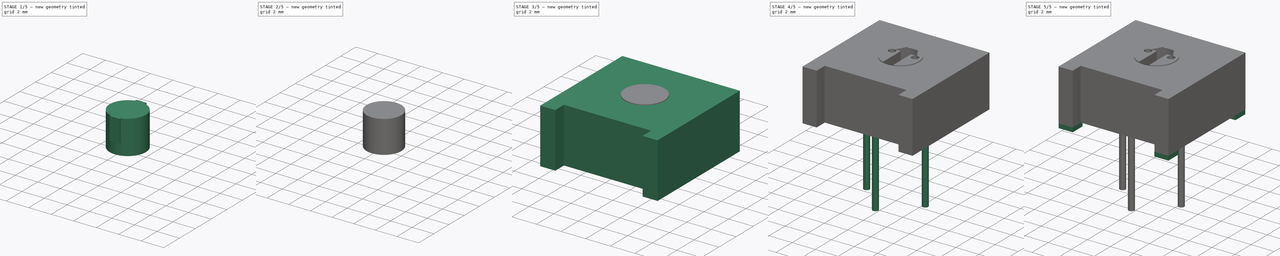
[diagram: build sequence overview — one tinted view per stage of 5, left to right]
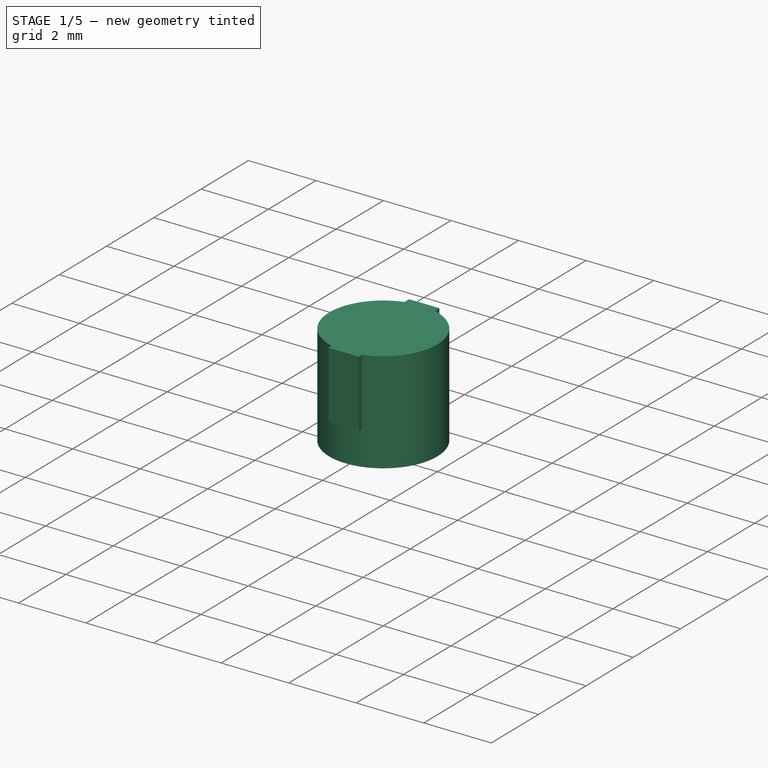
[diagram: stage 1 of 5 — iso view after this stage's code; geometry added in this stage tinted green]
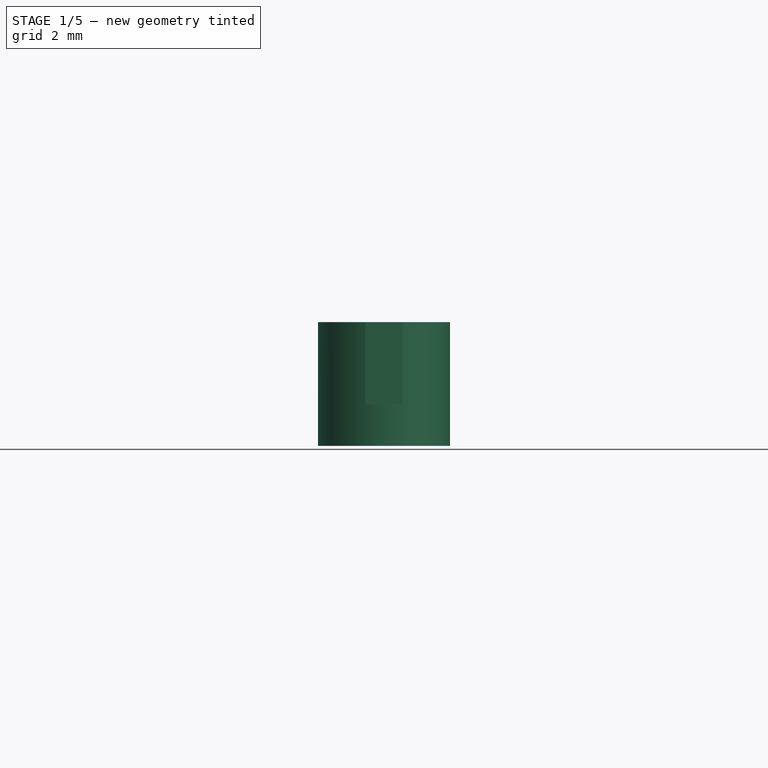
[diagram: stage 1 of 5 — front view after this stage's code; geometry added in this stage tinted green]
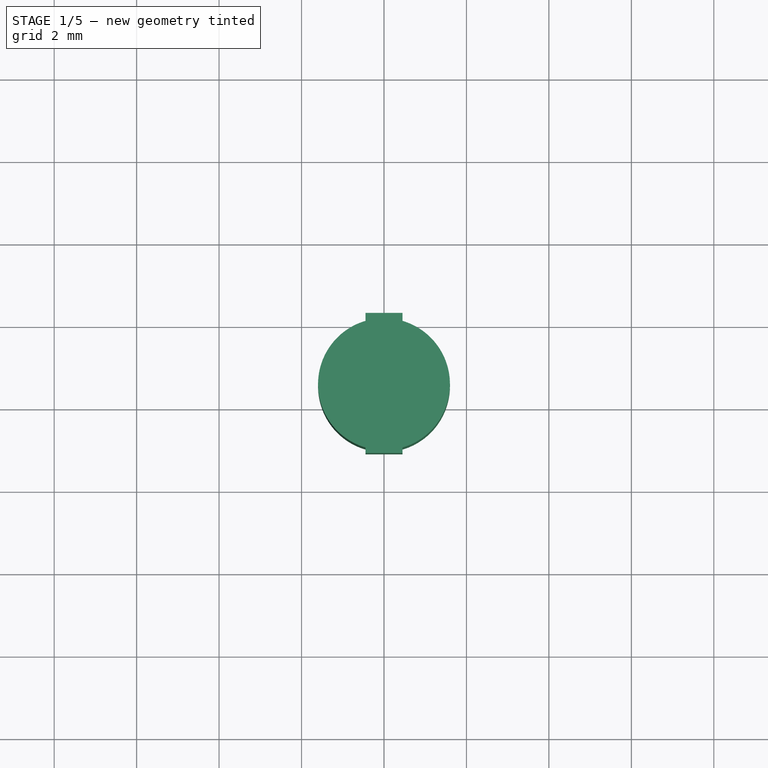
[diagram: stage 1 of 5 — top view after this stage's code; geometry added in this stage tinted green]
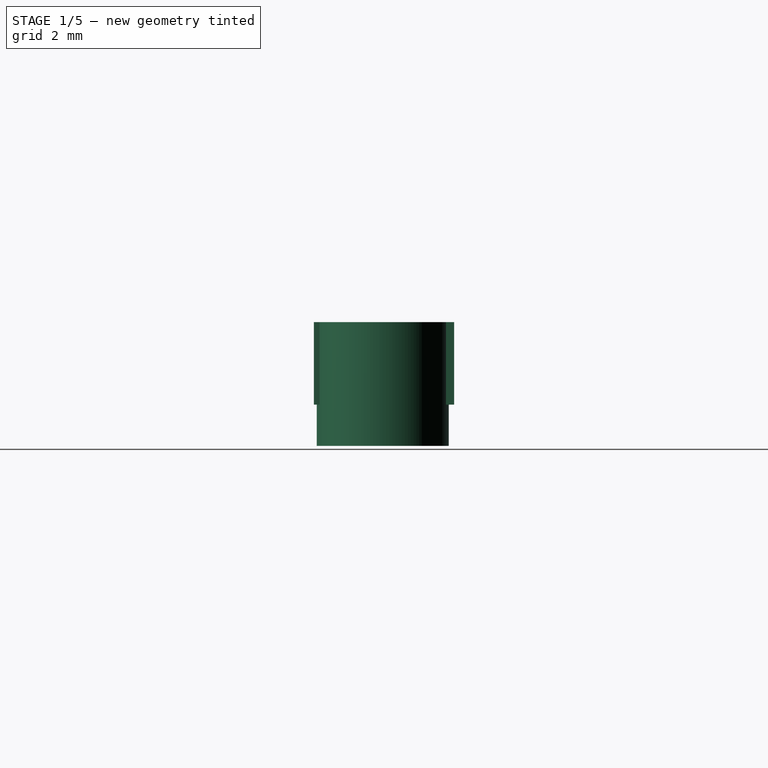
[diagram: stage 1 of 5 — right view after this stage's code; geometry added in this stage tinted green]
FCSTD DOCUMENT  (FreeCAD 0.20R29177 (Git))
Label: bourns_3386P-2
License: Creative Commons Attribution-ShareAlike
LicenseURL: http://creativecommons.org/licenses/by-sa/4.0/
objects: Part::Box×7, Part::Cylinder×7, Part::Cut×3, Sketcher::SketchObject×1, PartDesign::Pad×1, PartDesign::Body×1, Part::MultiFuse×1
note: 22 computed .brp shape members not serialized (recipe doc carries the construction recipe); baked Part::Feature solids carry a one-line shape summary decoded from their .brp

FEATURE [PartDesign::Body] Body
  Group = -> [Sketch,Pad]
  Origin = -> Origin
  Placement = pos=(0,0,3.5) rot=(0,0,1;0rad)
  Tip = -> Pad
FEATURE [Part::Box] Box006  label="Cube006"
  AttacherType = Attacher::AttachEngine3D
  Height = 2
  Length = 0.9
  Placement = pos=(-0.45,-1.1,2.9) rot=(0,0,1;0rad)
  Width = 3.4
FEATURE [Part::Cylinder] Cylinder004
  Angle = 360
  AttacherType = Attacher::AttachEngine3D
  FirstAngle = 0
  Height = 0.5
  Placement = pos=(-1,0.95,4.4) rot=(0,0,1;0rad)
  Radius = 0.3
  SecondAngle = 0
FEATURE [Part::Cylinder] Cylinder005
  Angle = 360
  AttacherType = Attacher::AttachEngine3D
  FirstAngle = 0
  Height = 0.5
  Placement = pos=(1,0.95,4.4) rot=(0,0,1;0rad)
  Radius = 0.3
  SecondAngle = 0
FEATURE [Part::Cylinder] Cylinder006
  Angle = 360
  AttacherType = Attacher::AttachEngine3D
  FirstAngle = 0
  Height = 3
  Placement = pos=(0,0.57,1.9) rot=(0,0,1;0rad)
  Radius = 1.6
  SecondAngle = 0
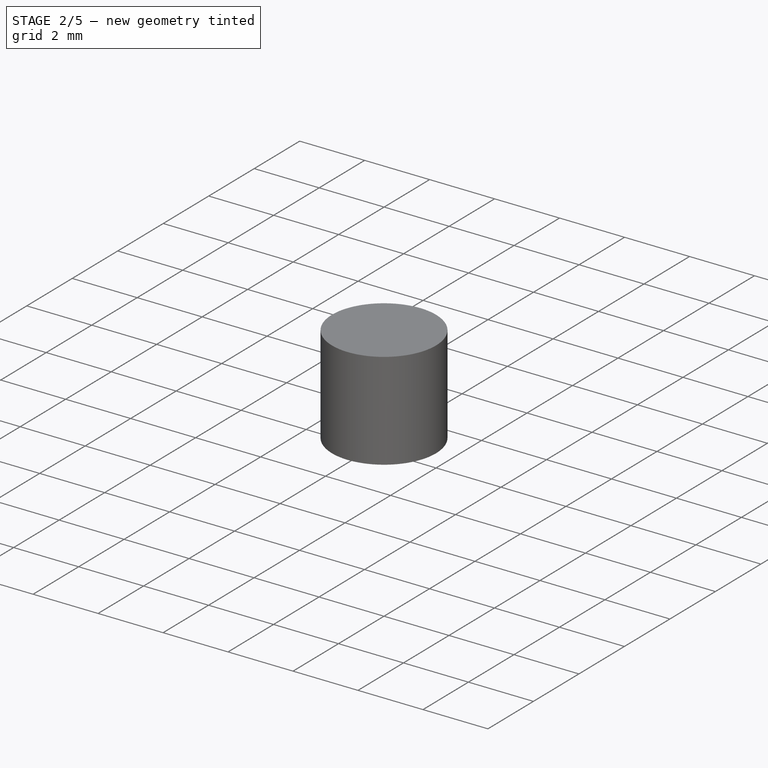
[diagram: stage 2 of 5 — iso view after this stage's code; geometry added in this stage tinted green]
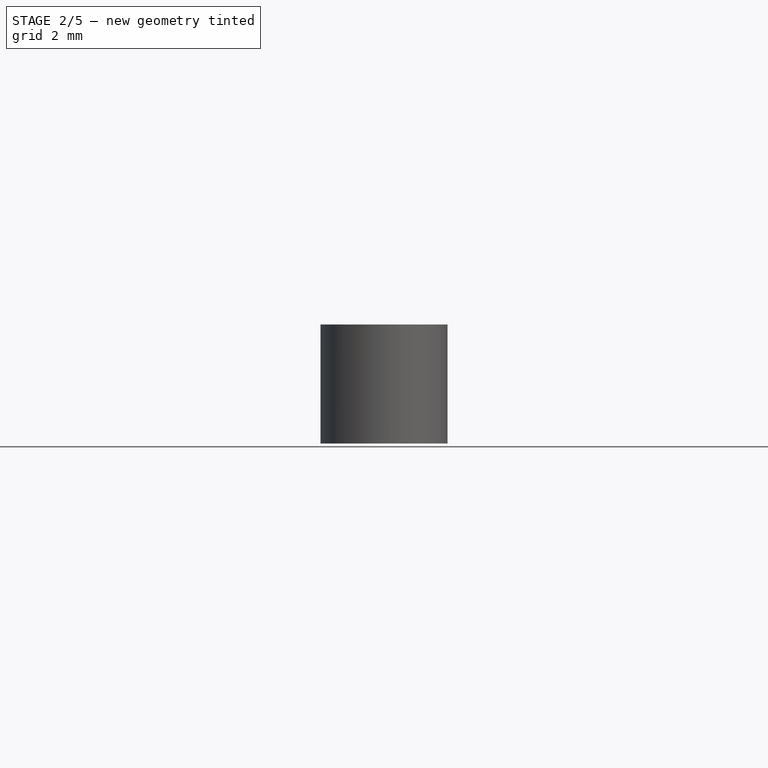
[diagram: stage 2 of 5 — front view after this stage's code; geometry added in this stage tinted green]
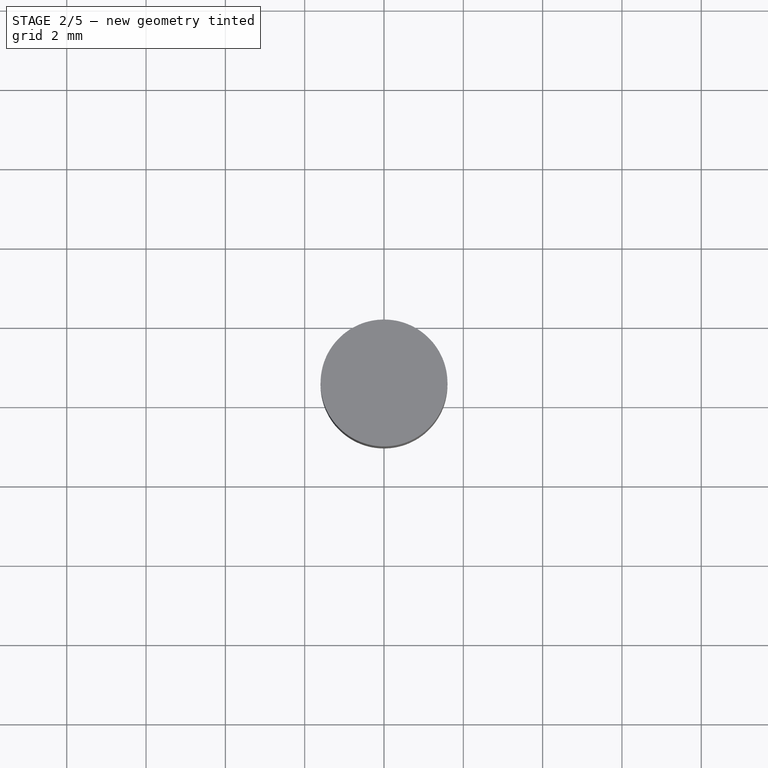
[diagram: stage 2 of 5 — top view after this stage's code; geometry added in this stage tinted green]
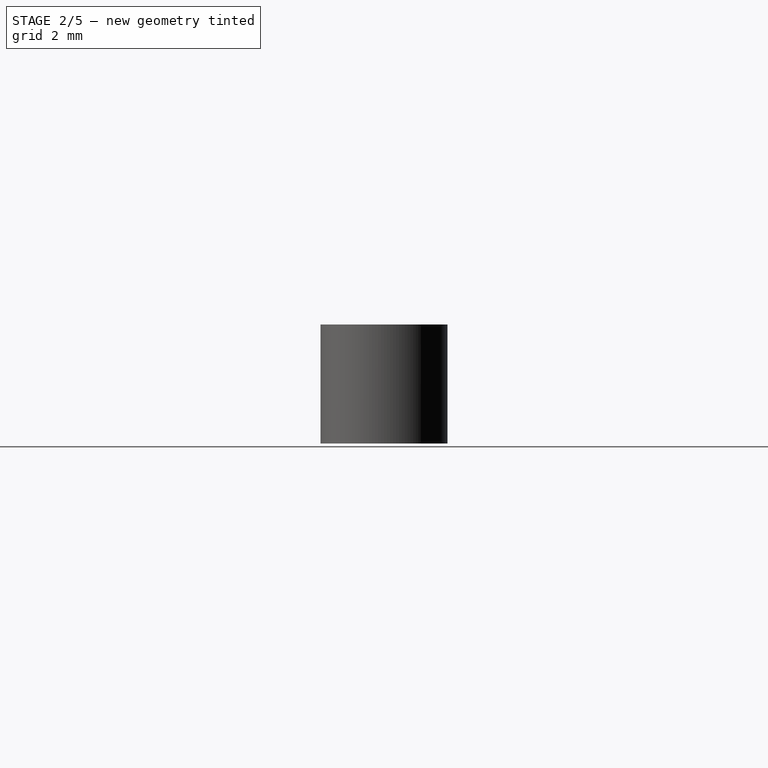
[diagram: stage 2 of 5 — right view after this stage's code; geometry added in this stage tinted green]
FEATURE [Part::Cylinder] Cylinder003
  Angle = 360
  AttacherType = Attacher::AttachEngine3D
  FirstAngle = 0
  Height = 3
  Placement = pos=(0,0.57,1.9) rot=(0,0,1;0rad)
  Radius = 1.6
  SecondAngle = 0
FEATURE [Sketcher::SketchObject] Sketch
  FullyConstrained = true
  MapMode = 5
  Support = -> [XY_Plane]
  sketch-geometry (7):
    g0: LineSegment StartX=-0.45 StartY=-1.1 StartZ=0 EndX=0.45 EndY=-1.1 EndZ=0
    g1: LineSegment StartX=0 StartY=2.88 StartZ=0 EndX=-0.95 EndY=1.25 EndZ=0
    g2: LineSegment StartX=0 StartY=2.88 StartZ=0 EndX=0.95 EndY=1.21888 EndZ=0
    g3: LineSegment StartX=-0.45 StartY=-1.1 StartZ=0 EndX=-0.45 EndY=1.25 EndZ=0
    g4: LineSegment StartX=0.45 StartY=-1.1 StartZ=0 EndX=0.45 EndY=1.21888 EndZ=0
    g5: LineSegment StartX=0.45 StartY=1.21888 StartZ=0 EndX=0.95 EndY=1.21888 EndZ=0
    g6: LineSegment StartX=-0.45 StartY=1.25 StartZ=0 EndX=-0.95 EndY=1.25 EndZ=0
  constraints (21):
    c: Horizontal(g0)
    c: Distance(g0) = 0.9
    c: DistanceX(g0) = -0.45
    c: Coincident(g1,g2)
    c: Angle(g1,g2) = 1.0472
    c: DistanceX(g1) = 0
    c: DistanceY(g1) = 2.88
    c: Vertical(g3)
    c: Vertical(g4)
    c: Coincident(g0,g3)
    c: Coincident(g0,g4)
    c: Horizontal(g5)
    c: Horizontal(g6)
    c: Coincident(g4,g5)
    c: Coincident(g3,g6)
    c: Distance(g6) = 0.5
    c: Distance(g5) = 0.5
    c: Coincident(g1,g6)
    c: Coincident(g2,g5)
    c: DistanceY(g0) = -1.1
    c: DistanceY(g3) = 1.25
FEATURE [PartDesign::Pad] Pad
  Direction = (0,0,1)
  Length = 1.4
  Length2 = 100
  Profile = -> Sketch
  Type = 0
FEATURE [Part::MultiFuse] Fusion
  Shapes = -> [Body,Box006,Cylinder004,Cylinder005]
FEATURE [Part::Cut] Cut003
  Base = -> Cylinder006
  Tool = -> Fusion
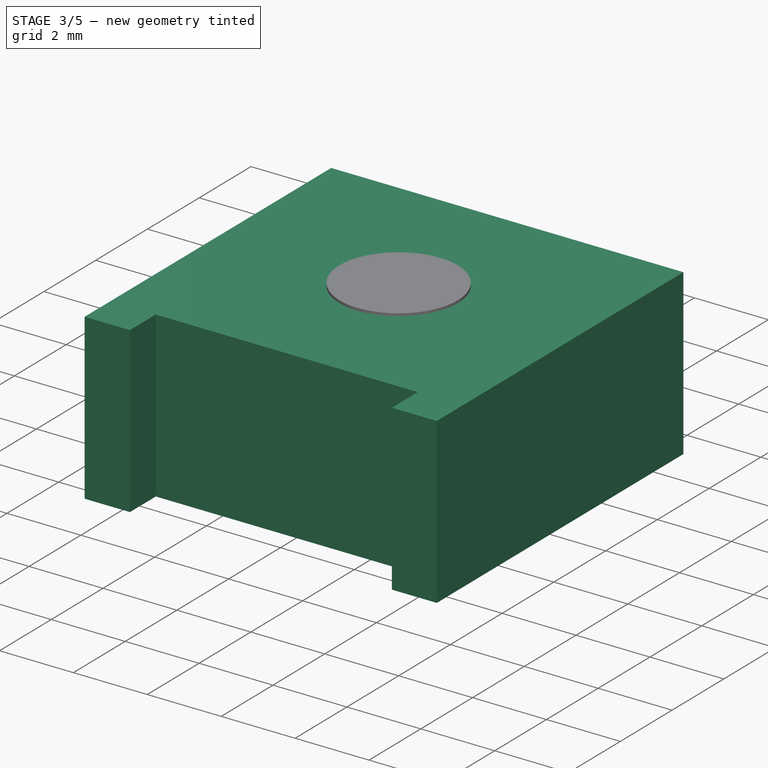
[diagram: stage 3 of 5 — iso view after this stage's code; geometry added in this stage tinted green]
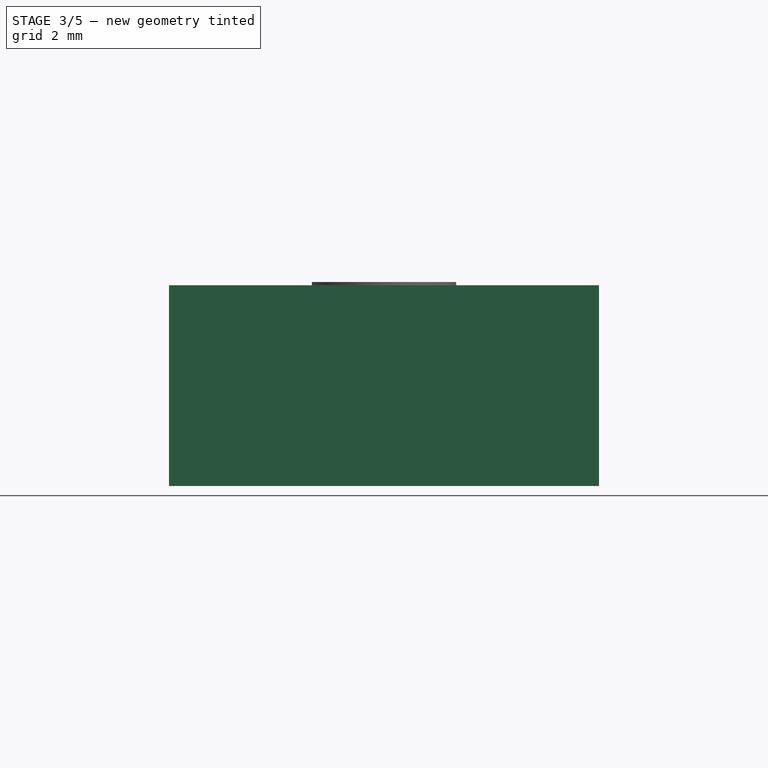
[diagram: stage 3 of 5 — front view after this stage's code; geometry added in this stage tinted green]
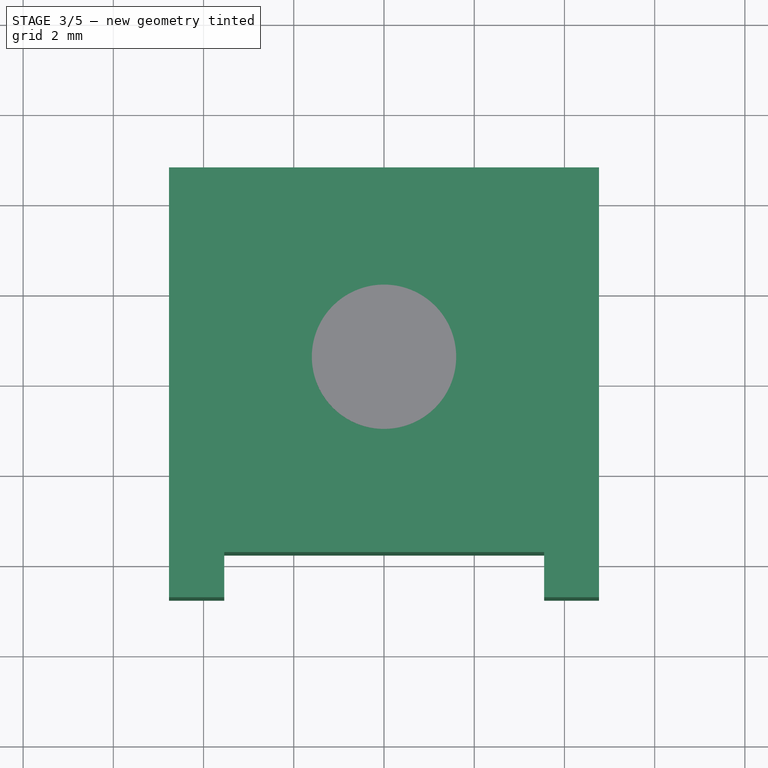
[diagram: stage 3 of 5 — top view after this stage's code; geometry added in this stage tinted green]
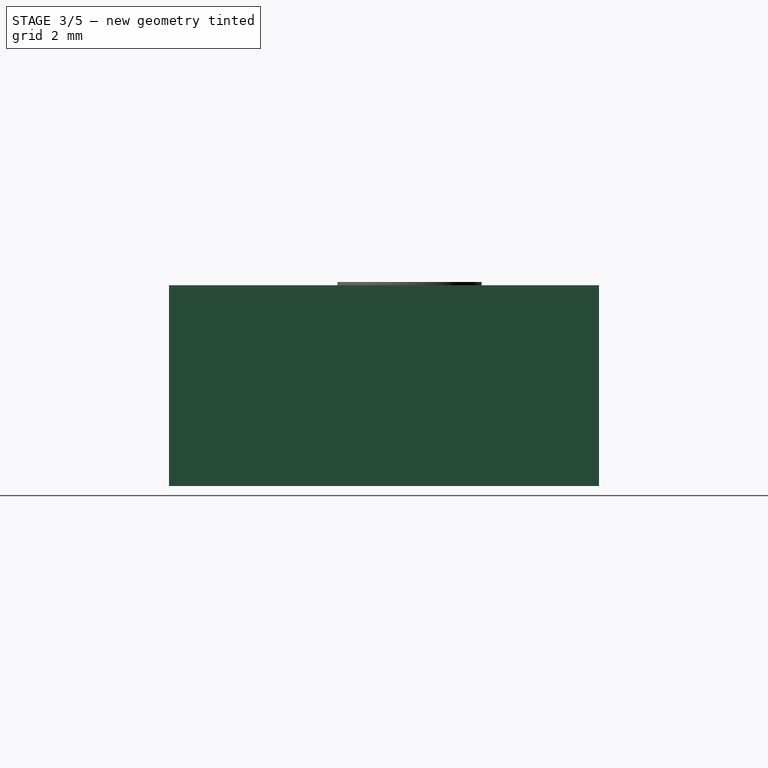
[diagram: stage 3 of 5 — right view after this stage's code; geometry added in this stage tinted green]
FEATURE [Part::Box] Box  label="Cube"
  AttacherType = Attacher::AttachEngine3D
  Height = 4.45
  Length = 9.53
  Placement = pos=(-4.765,-4.76,0.38) rot=(0,0,1;0rad)
  Width = 9.53
FEATURE [Part::Box] Box005  label="Cube005"
  AttacherType = Attacher::AttachEngine3D
  Height = 4.45
  Length = 7.09
  Placement = pos=(-3.54,-4.76,0.38) rot=(0,0,1;0rad)
  Width = 1
FEATURE [Part::Cut] Cut
  Base = -> Box
  Tool = -> Box005
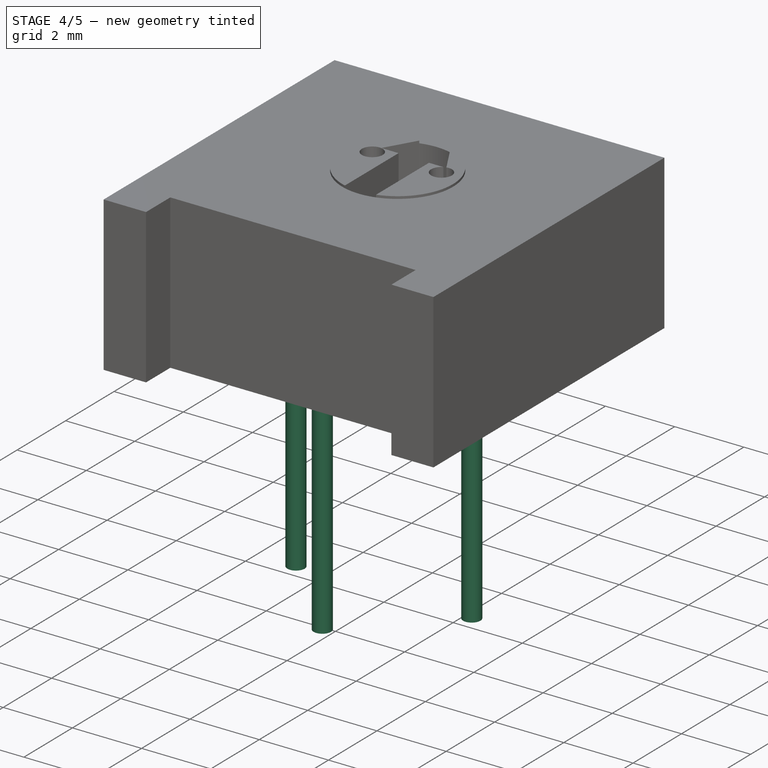
[diagram: stage 4 of 5 — iso view after this stage's code; geometry added in this stage tinted green]
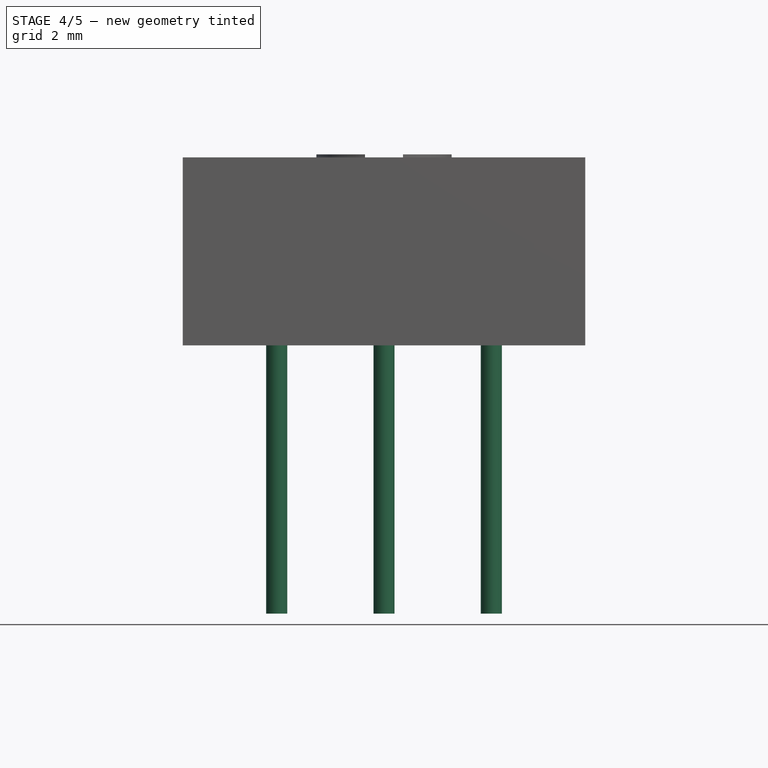
[diagram: stage 4 of 5 — front view after this stage's code; geometry added in this stage tinted green]
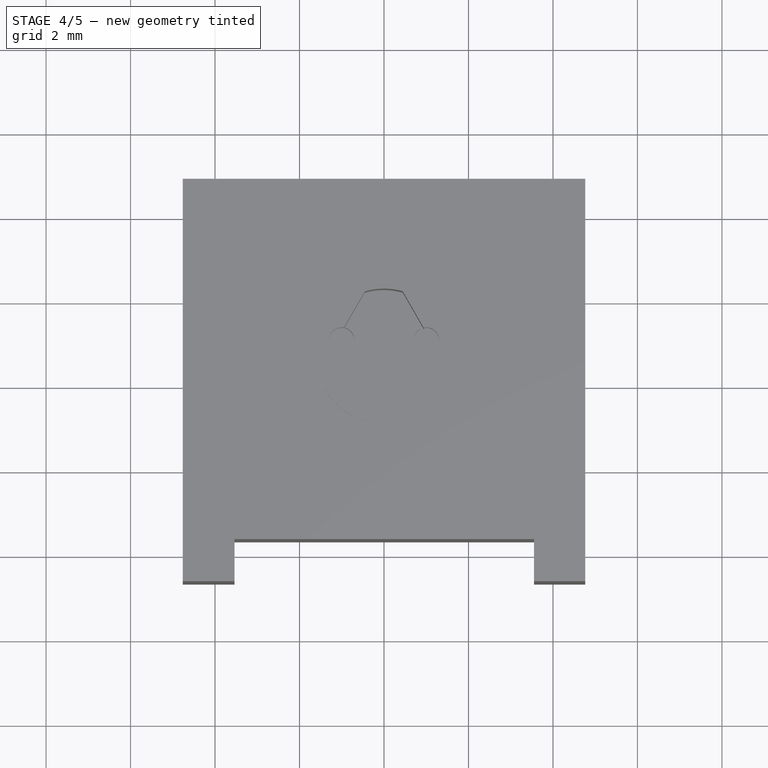
[diagram: stage 4 of 5 — top view after this stage's code; geometry added in this stage tinted green]
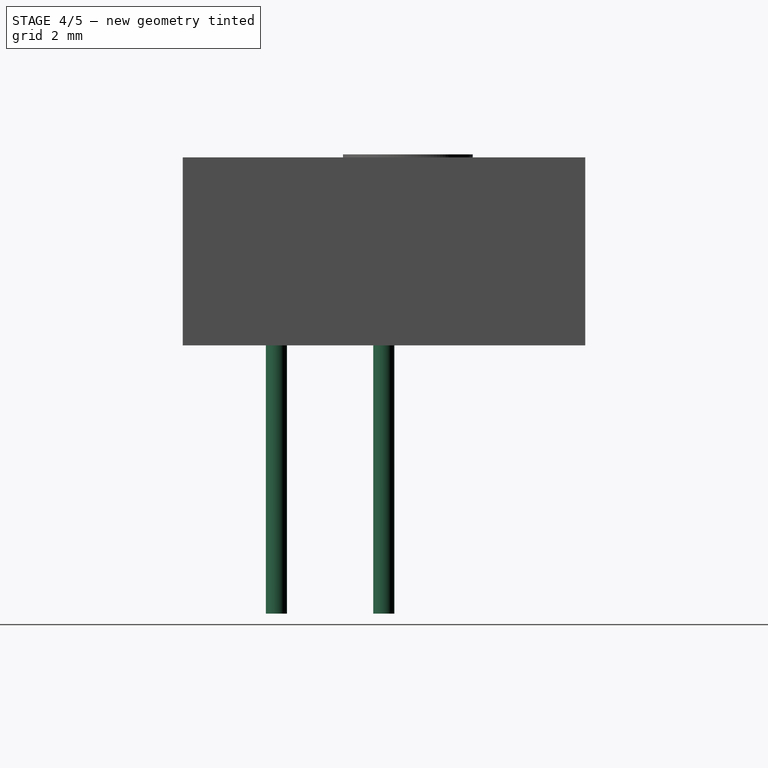
[diagram: stage 4 of 5 — right view after this stage's code; geometry added in this stage tinted green]
FEATURE [Part::Cylinder] Cylinder
  Angle = 360
  AttacherType = Attacher::AttachEngine3D
  FirstAngle = 0
  Height = 6.35
  Placement = pos=(2.54,0,-5.97) rot=(0,0,1;0rad)
  Radius = 0.25
  SecondAngle = 0
FEATURE [Part::Cylinder] Cylinder001
  Angle = 360
  AttacherType = Attacher::AttachEngine3D
  FirstAngle = 0
  Height = 6.35
  Placement = pos=(-2.54,0,-5.97) rot=(0,0,1;0rad)
  Radius = 0.25
  SecondAngle = 0
FEATURE [Part::Cylinder] Cylinder002
  Angle = 360
  AttacherType = Attacher::AttachEngine3D
  FirstAngle = 0
  Height = 6.35
  Placement = pos=(0,-2.54,-5.97) rot=(0,0,1;0rad)
  Radius = 0.25
  SecondAngle = 0
FEATURE [Part::Cut] Cut002
  Base = -> Cut
  Tool = -> Cylinder003
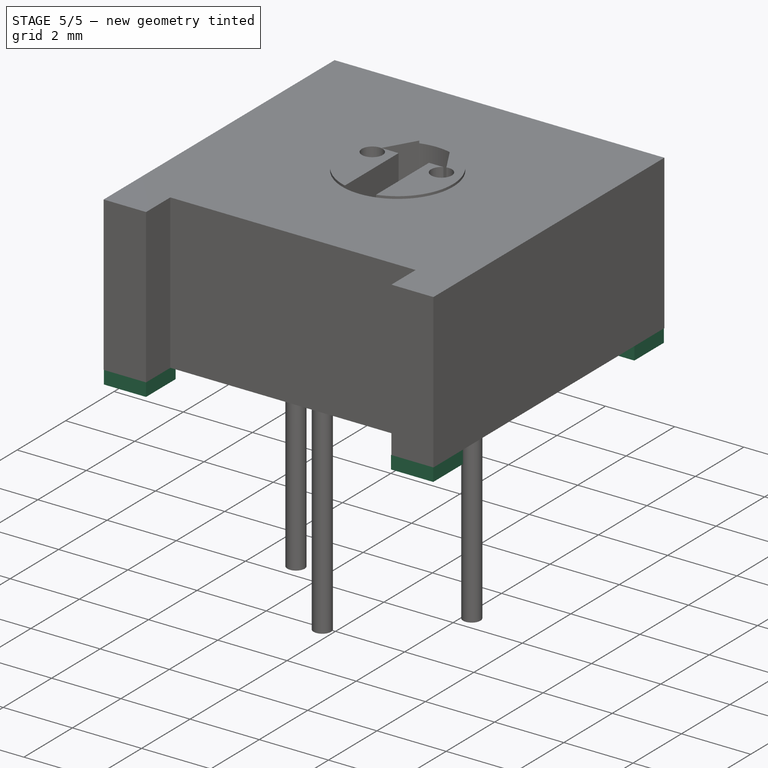
[diagram: stage 5 of 5 — iso view after this stage's code; geometry added in this stage tinted green]
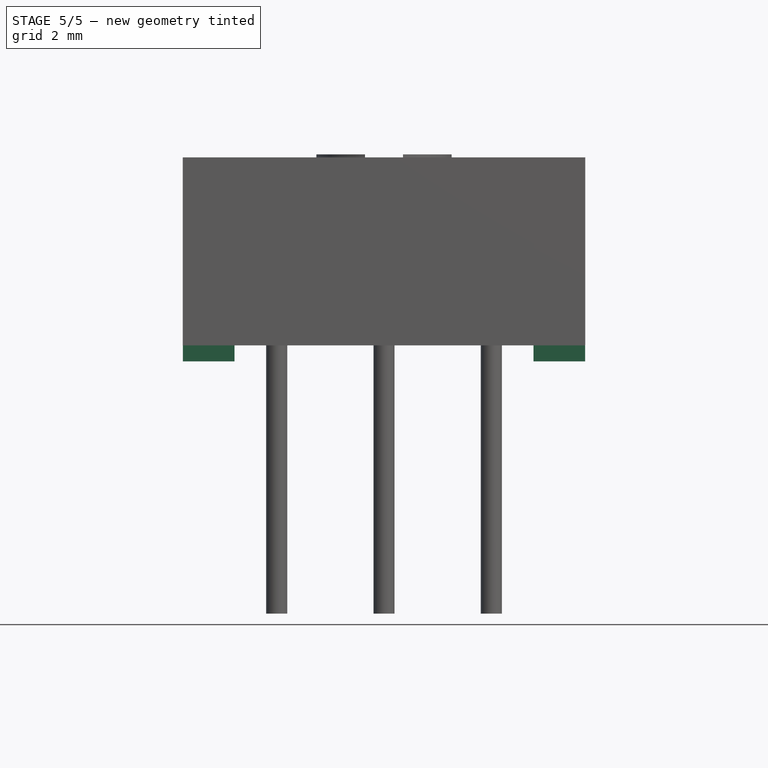
[diagram: stage 5 of 5 — front view after this stage's code; geometry added in this stage tinted green]
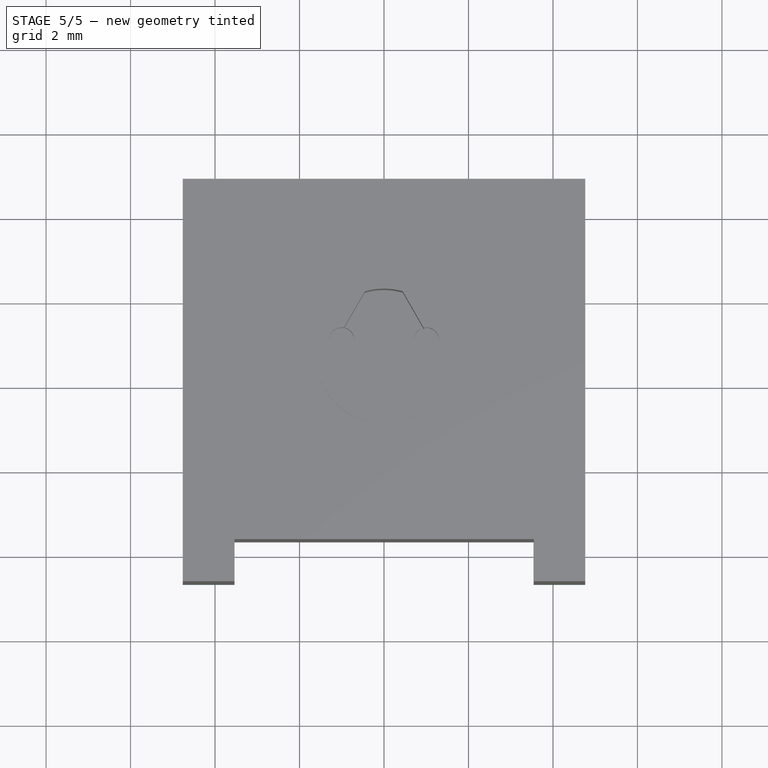
[diagram: stage 5 of 5 — top view after this stage's code; geometry added in this stage tinted green]
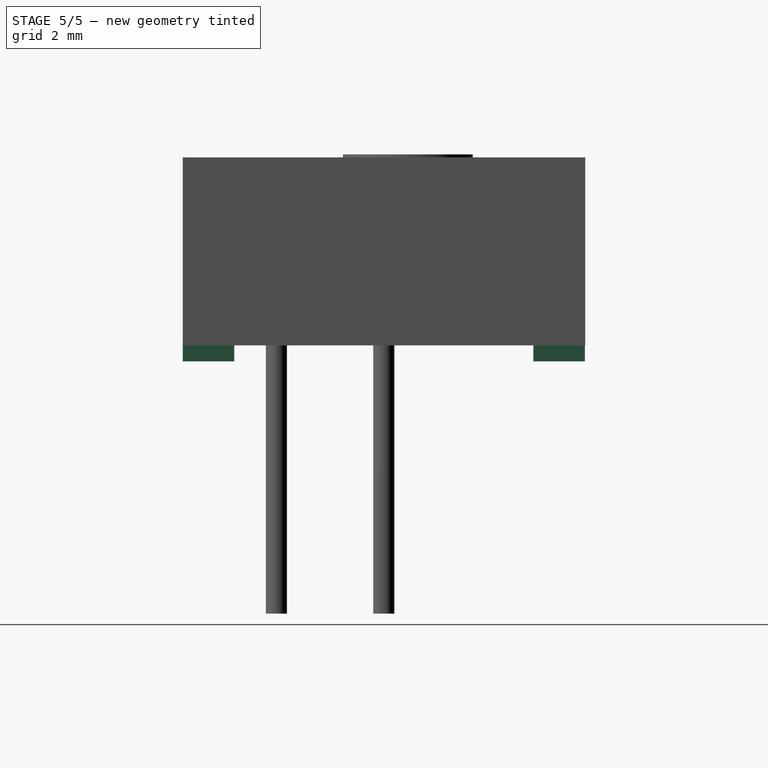
[diagram: stage 5 of 5 — right view after this stage's code; geometry added in this stage tinted green]
FEATURE [Part::Box] Box001  label="Cube001"
  AttacherType = Attacher::AttachEngine3D
  Height = 0.38
  Length = 1.22
  Placement = pos=(-4.76,-4.76,0) rot=(0,0,1;0rad)
  Width = 1.22
FEATURE [Part::Box] Box002  label="Cube002"
  AttacherType = Attacher::AttachEngine3D
  Height = 0.38
  Length = 1.22
  Placement = pos=(-4.76,3.54,0) rot=(0,0,1;0rad)
  Width = 1.22
FEATURE [Part::Box] Box003  label="Cube003"
  AttacherType = Attacher::AttachEngine3D
  Height = 0.38
  Length = 1.22
  Placement = pos=(3.54,-4.76,0) rot=(0,0,1;0rad)
  Width = 1.22
FEATURE [Part::Box] Box004  label="Cube004"
  AttacherType = Attacher::AttachEngine3D
  Height = 0.38
  Length = 1.22
  Placement = pos=(3.54,3.54,0) rot=(0,0,1;0rad)
  Width = 1.22
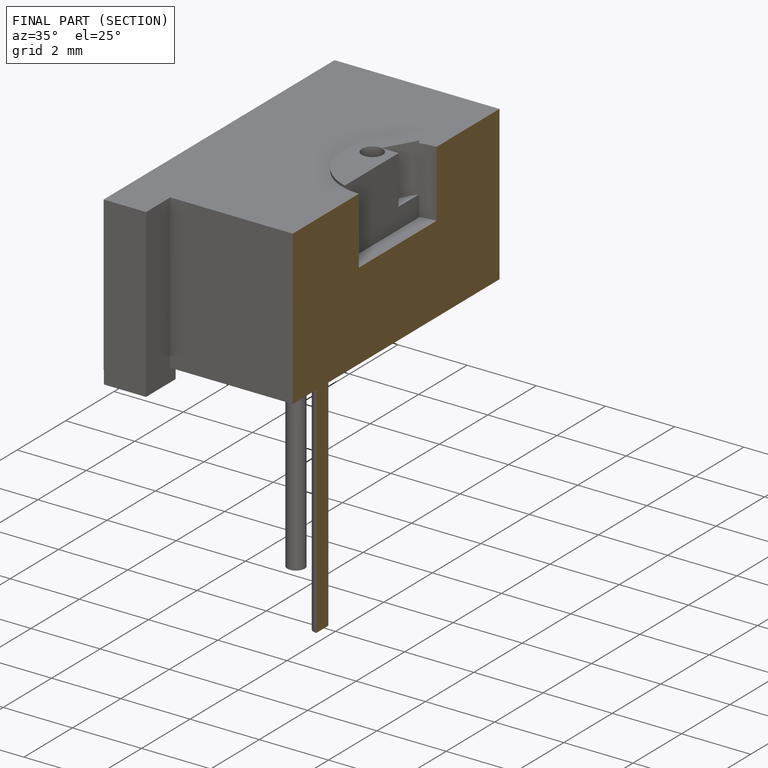
[diagram: finished part — half-section view (interior)]
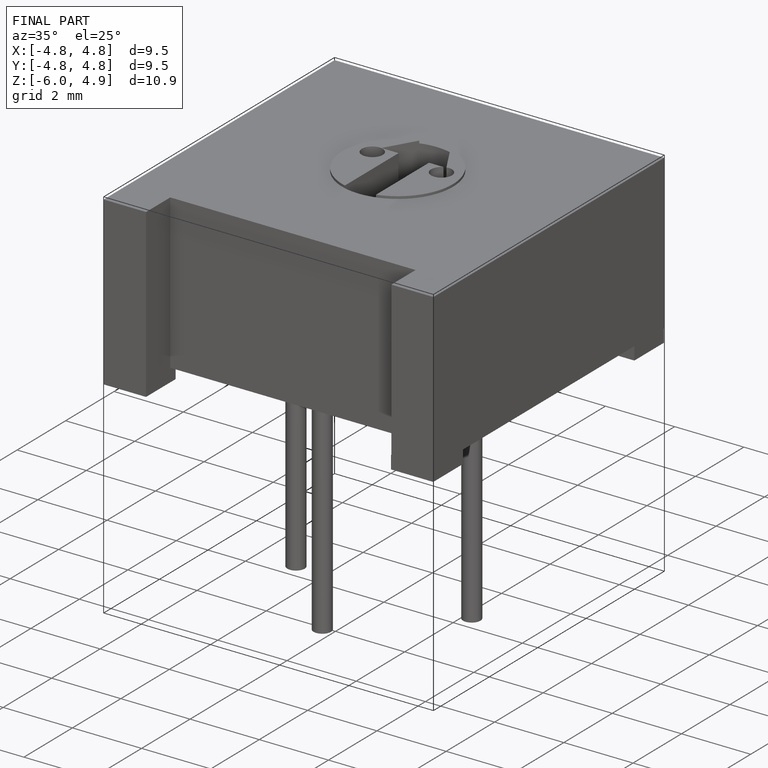
[diagram: finished part — iso view with bounding-box wireframe]
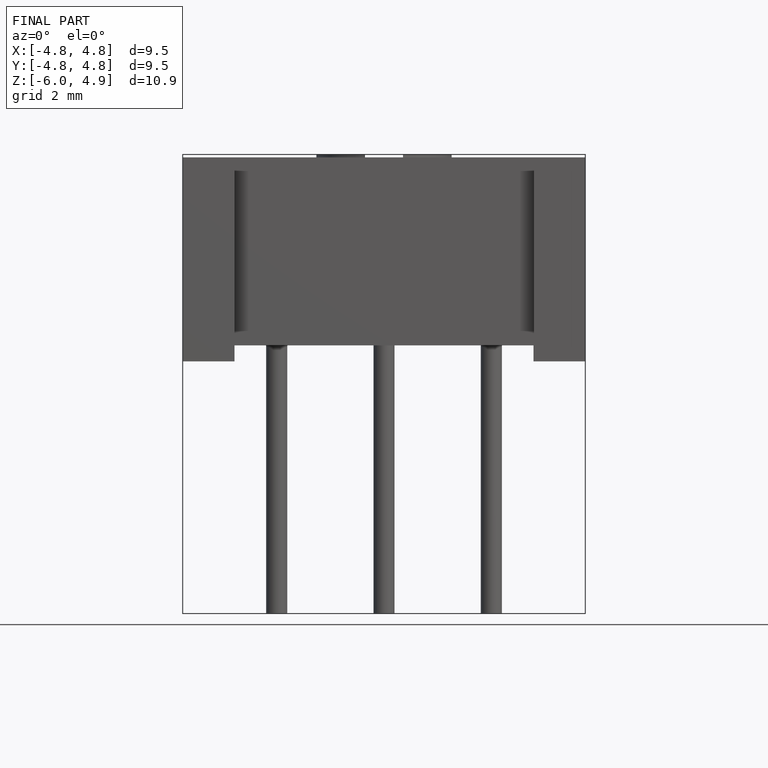
[diagram: finished part — front view with bounding-box wireframe]
